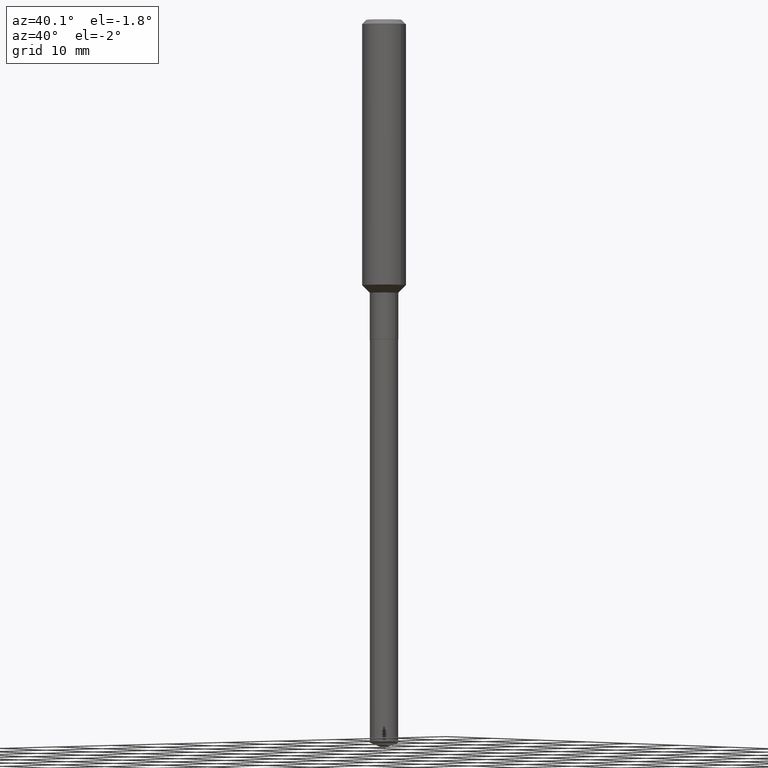
[diagram: clean part render]
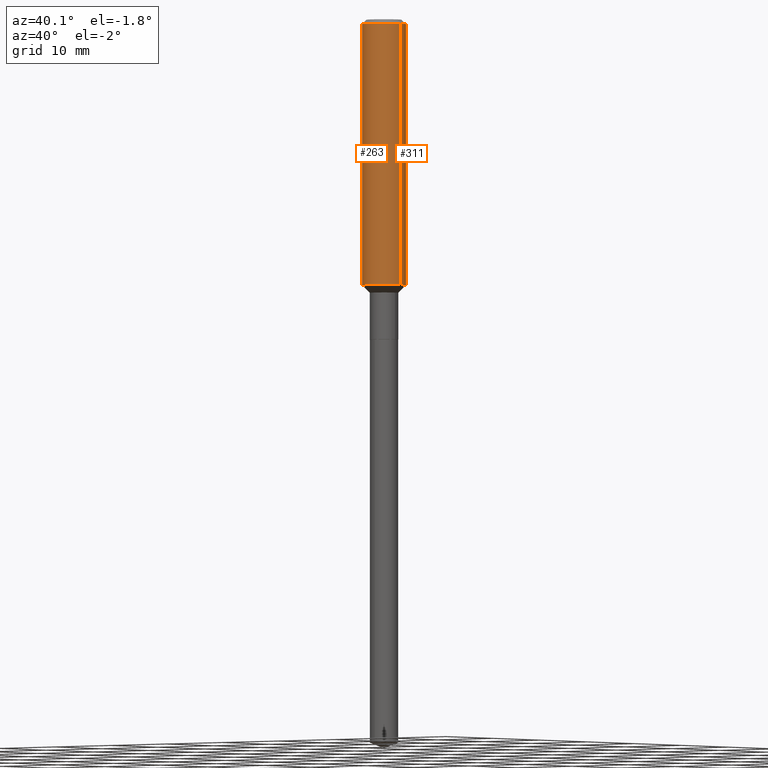
[diagram: same view with one multi-face feature highlighted, each face labeled with its STEP entity id]
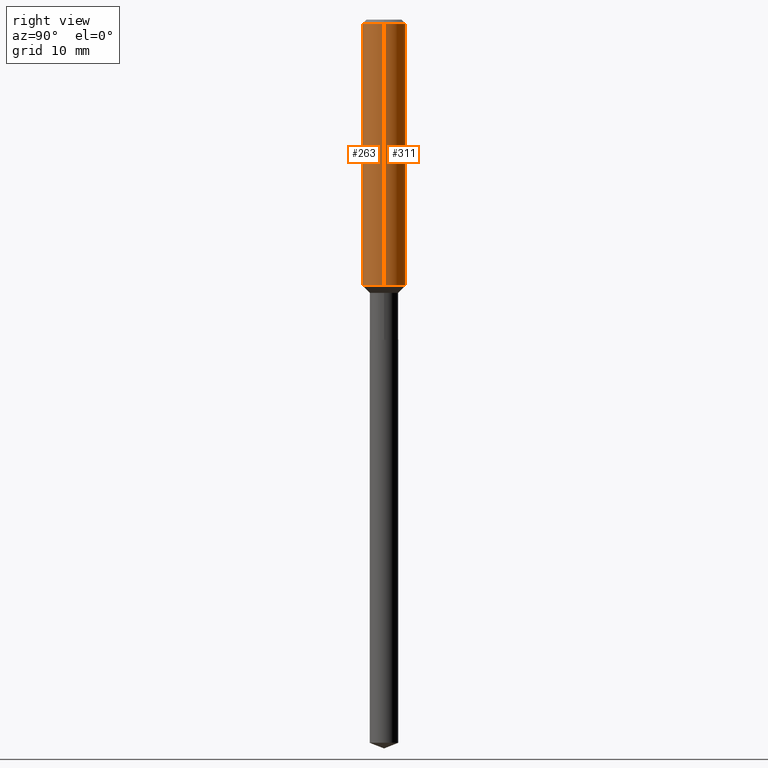
[diagram: same view with one multi-face feature highlighted, each face labeled with its STEP entity id]
A machine part, auxiliary view. The highlighted faces form ONE feature: a constant-radius fillet chain: 2 tangent blend faces with common blend radius 2.9997 mm. The faces share edges in the B-rep.
A second angle (right view) of the same feature is appended — it is thin or edge-on in the first view.
Their STEP definitions:
[1] entity #263 (Cylinder):
#19 = CIRCLE ( 'NONE', #306, 0.1180999999999999966 ) ;
#31 = EDGE_CURVE ( 'NONE', #50, #84, #349, .T. ) ;
#34 = DIRECTION ( 'NONE',  ( 1.000000000000000000, -6.982962677686266711E-15, 0.000000000000000000 ) ) ;
#50 = VERTEX_POINT ( 'NONE', #75 ) ;
#63 = CARTESIAN_POINT ( 'NONE',  ( 5.776197320209328408E-31, -8.246878922347560526E-17, -0.02362000000000014435 ) ) ;
#67 = EDGE_LOOP ( 'NONE', ( #316, #129, #335, #358 ) ) ;
#70 = AXIS2_PLACEMENT_3D ( 'NONE', #437, #360, #131 ) ;
#75 = CARTESIAN_POINT ( 'NONE',  ( 0.1181000000000001632, -5.823267150989537830E-15, -1.431650000000000089 ) ) ;
#84 = VERTEX_POINT ( 'NONE', #166 ) ;
#89 = CARTESIAN_POINT ( 'NONE',  ( -0.1181000000000000799, 8.391509709326788873E-16, -5.809262341591047988E-30 ) ) ;
#106 = EDGE_CURVE ( 'NONE', #446, #50, #466, .T. ) ;
#129 = ORIENTED_EDGE ( 'NONE', *, *, #106, .T. ) ;
#131 = DIRECTION ( 'NONE',  ( 1.000000000000000000, -6.982962677686266711E-15, 4.876176775795936353E-29 ) ) ;
#147 = DIRECTION ( 'NONE',  ( -2.445468806185136597E-29, 3.491481338843145583E-15, 1.000000000000000000 ) ) ;
#148 = CARTESIAN_POINT ( 'NONE',  ( -0.1180999999999999966, -1.701373053056452935E-15, -0.02362000000000014435 ) ) ;
#166 = CARTESIAN_POINT ( 'NONE',  ( 0.1180999999999999966, -9.071566814582237199E-16, -0.02362000000000014435 ) ) ;
#170 = LINE ( 'NONE', #89, #228 ) ;
#188 = CARTESIAN_POINT ( 'NONE',  ( -0.1181000000000001632, -4.159428287822109792E-15, -1.431650000000000089 ) ) ;
#228 = VECTOR ( 'NONE', #249, 39.37007874015748143 ) ;
#249 = DIRECTION ( 'NONE',  ( -2.445468806185136877E-29, 3.491481338843145188E-15, 1.000000000000000000 ) ) ;
#260 = DIRECTION ( 'NONE',  ( -2.445468806185136597E-29, 3.491481338843145583E-15, 1.000000000000000000 ) ) ;
#263 = ADVANCED_FACE ( 'NONE', ( #330 ), #399, .T. ) ;
#291 = EDGE_CURVE ( 'NONE', #446, #364, #170, .T. ) ;
#302 = EDGE_CURVE ( 'NONE', #364, #84, #19, .T. ) ;
#306 = AXIS2_PLACEMENT_3D ( 'NONE', #63, #260, #34 ) ;
#309 = DIRECTION ( 'NONE',  ( 1.000000000000000000, -6.982962677686270655E-15, 0.000000000000000000 ) ) ;
#312 = VECTOR ( 'NONE', #380, 39.37007874015748143 ) ;
#316 = ORIENTED_EDGE ( 'NONE', *, *, #291, .F. ) ;
#330 = FACE_OUTER_BOUND ( 'NONE', #67, .T. ) ;
#335 = ORIENTED_EDGE ( 'NONE', *, *, #31, .T. ) ;
#349 = LINE ( 'NONE', #352, #312 ) ;
#352 = CARTESIAN_POINT ( 'NONE',  ( 0.1181000000000000799, -8.246878922347486570E-16, 5.758764772215004644E-30 ) ) ;
#358 = ORIENTED_EDGE ( 'NONE', *, *, #302, .F. ) ;
#360 = DIRECTION ( 'NONE',  ( -2.445468806185136597E-29, 3.491481338843145583E-15, 1.000000000000000000 ) ) ;
#364 = VERTEX_POINT ( 'NONE', #148 ) ;
#380 = DIRECTION ( 'NONE',  ( -2.445468806185136877E-29, 3.491481338843145188E-15, 1.000000000000000000 ) ) ;
#399 = CYLINDRICAL_SURFACE ( 'NONE', #70, 0.1181000000000000799 ) ;
#414 = AXIS2_PLACEMENT_3D ( 'NONE', #485, #147, #309 ) ;
#437 = CARTESIAN_POINT ( 'NONE',  ( 0.000000000000000000, 0.000000000000000000, 0.000000000000000000 ) ) ;
#446 = VERTEX_POINT ( 'NONE', #188 ) ;
#466 = CIRCLE ( 'NONE', #414, 0.1181000000000001632 ) ;
#485 = CARTESIAN_POINT ( 'NONE',  ( 3.501055416374951220E-29, -4.998579258754789567E-15, -1.431650000000000089 ) ) ;
[2] entity #311 (Cylinder):
#24 = ORIENTED_EDGE ( 'NONE', *, *, #31, .F. ) ;
#31 = EDGE_CURVE ( 'NONE', #50, #84, #349, .T. ) ;
#41 = DIRECTION ( 'NONE',  ( -2.445468806185136597E-29, 3.491481338843145583E-15, 1.000000000000000000 ) ) ;
#49 = DIRECTION ( 'NONE',  ( 1.000000000000000000, -6.982962677686266711E-15, 0.000000000000000000 ) ) ;
#50 = VERTEX_POINT ( 'NONE', #75 ) ;
#75 = CARTESIAN_POINT ( 'NONE',  ( 0.1181000000000001632, -5.823267150989537830E-15, -1.431650000000000089 ) ) ;
#84 = VERTEX_POINT ( 'NONE', #166 ) ;
#85 = EDGE_CURVE ( 'NONE', #50, #446, #327, .T. ) ;
#89 = CARTESIAN_POINT ( 'NONE',  ( -0.1181000000000000799, 8.391509709326788873E-16, -5.809262341591047988E-30 ) ) ;
#95 = DIRECTION ( 'NONE',  ( -2.445468806185136597E-29, 3.491481338843145583E-15, 1.000000000000000000 ) ) ;
#105 = CYLINDRICAL_SURFACE ( 'NONE', #233, 0.1181000000000000799 ) ;
#146 = FACE_OUTER_BOUND ( 'NONE', #186, .T. ) ;
#148 = CARTESIAN_POINT ( 'NONE',  ( -0.1180999999999999966, -1.701373053056452935E-15, -0.02362000000000014435 ) ) ;
#166 = CARTESIAN_POINT ( 'NONE',  ( 0.1180999999999999966, -9.071566814582237199E-16, -0.02362000000000014435 ) ) ;
#170 = LINE ( 'NONE', #89, #228 ) ;
#177 = CIRCLE ( 'NONE', #258, 0.1180999999999999966 ) ;
#180 = CARTESIAN_POINT ( 'NONE',  ( 5.776197320209328408E-31, -8.246878922347560526E-17, -0.02362000000000014435 ) ) ;
#186 = EDGE_LOOP ( 'NONE', ( #248, #400, #369, #24 ) ) ;
#188 = CARTESIAN_POINT ( 'NONE',  ( -0.1181000000000001632, -4.159428287822109792E-15, -1.431650000000000089 ) ) ;
#228 = VECTOR ( 'NONE', #249, 39.37007874015748143 ) ;
#233 = AXIS2_PLACEMENT_3D ( 'NONE', #307, #301, #449 ) ;
#248 = ORIENTED_EDGE ( 'NONE', *, *, #85, .T. ) ;
#249 = DIRECTION ( 'NONE',  ( -2.445468806185136877E-29, 3.491481338843145188E-15, 1.000000000000000000 ) ) ;
#258 = AXIS2_PLACEMENT_3D ( 'NONE', #180, #95, #49 ) ;
#282 = EDGE_CURVE ( 'NONE', #84, #364, #177, .T. ) ;
#291 = EDGE_CURVE ( 'NONE', #446, #364, #170, .T. ) ;
#301 = DIRECTION ( 'NONE',  ( -2.445468806185136597E-29, 3.491481338843145583E-15, 1.000000000000000000 ) ) ;
#307 = CARTESIAN_POINT ( 'NONE',  ( 0.000000000000000000, 0.000000000000000000, 0.000000000000000000 ) ) ;
#311 = ADVANCED_FACE ( 'NONE', ( #146 ), #105, .T. ) ;
#312 = VECTOR ( 'NONE', #380, 39.37007874015748143 ) ;
#314 = CARTESIAN_POINT ( 'NONE',  ( 3.501055416374951220E-29, -4.998579258754789567E-15, -1.431650000000000089 ) ) ;
#318 = DIRECTION ( 'NONE',  ( 1.000000000000000000, -6.982962677686270655E-15, 0.000000000000000000 ) ) ;
#327 = CIRCLE ( 'NONE', #419, 0.1181000000000001632 ) ;
#349 = LINE ( 'NONE', #352, #312 ) ;
#352 = CARTESIAN_POINT ( 'NONE',  ( 0.1181000000000000799, -8.246878922347486570E-16, 5.758764772215004644E-30 ) ) ;
#364 = VERTEX_POINT ( 'NONE', #148 ) ;
#369 = ORIENTED_EDGE ( 'NONE', *, *, #282, .F. ) ;
#380 = DIRECTION ( 'NONE',  ( -2.445468806185136877E-29, 3.491481338843145188E-15, 1.000000000000000000 ) ) ;
#400 = ORIENTED_EDGE ( 'NONE', *, *, #291, .T. ) ;
#419 = AXIS2_PLACEMENT_3D ( 'NONE', #314, #41, #318 ) ;
#446 = VERTEX_POINT ( 'NONE', #188 ) ;
#449 = DIRECTION ( 'NONE',  ( 1.000000000000000000, -6.982962677686266711E-15, 4.876176775795936353E-29 ) ) ;